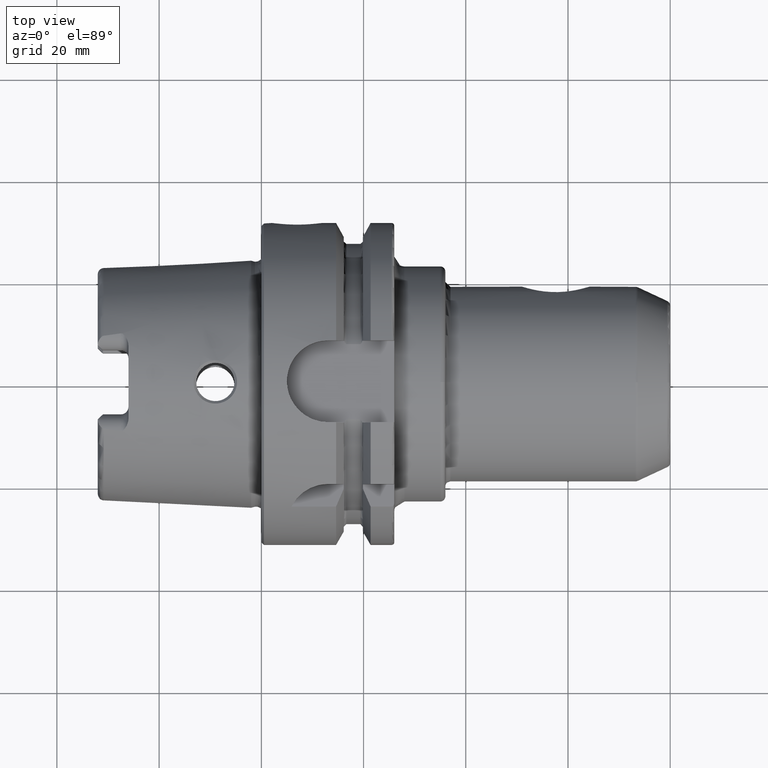
[diagram: clean part render]
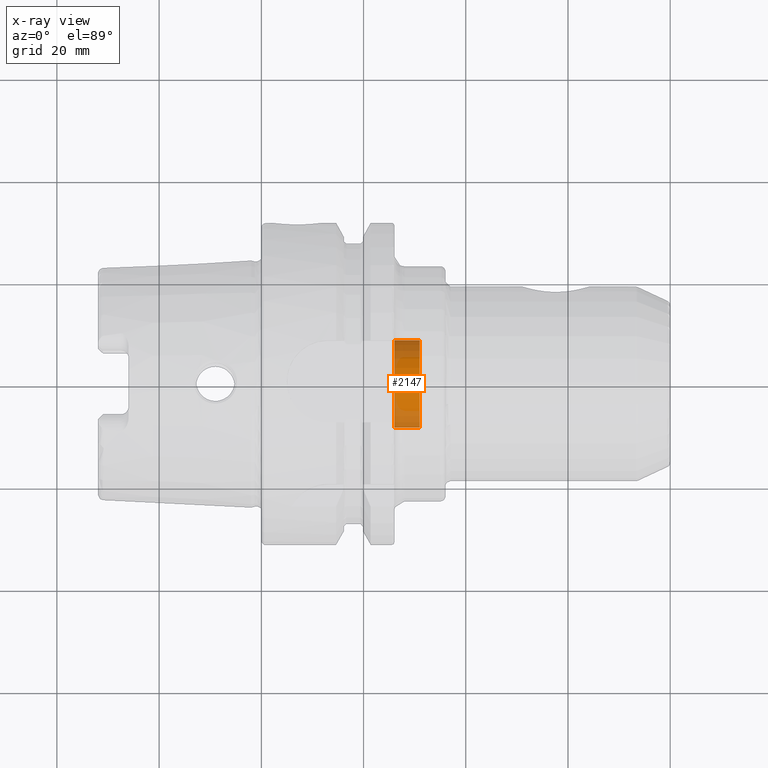
[diagram: x-ray — body ghosted, one internal face saturated and labeled with its STEP entity id]
A machine part, top view, then the same camera in x-ray: the body is ghosted and one INTERNAL B-rep face — a face not visible from any outside direction — is saturated and labeled: STEP entity #2147.
In plain terms, the highlighted cylindrical surface (bore or boss wall) has radius 8.5375 mm, axis along (1, 0, 0).
Its self-contained STEP definition (entity closure, byte-faithful):
#200=CYLINDRICAL_SURFACE('',#2336,8.53749999999999);
#255=FACE_OUTER_BOUND('',#394,.T.);
#394=EDGE_LOOP('',(#1542,#1543,#1544,#1545));
#527=LINE('',#3557,#639);
#639=VECTOR('',#2693,8.53749999999999);
#766=CIRCLE('',#2335,8.53749999999999);
#767=CIRCLE('',#2337,8.53749999999999);
#916=VERTEX_POINT('',#3553);
#917=VERTEX_POINT('',#3556);
#1153=EDGE_CURVE('',#916,#916,#766,.T.);
#1154=EDGE_CURVE('',#916,#917,#527,.T.);
#1155=EDGE_CURVE('',#917,#917,#767,.T.);
#1542=ORIENTED_EDGE('',*,*,#1153,.T.);
#1543=ORIENTED_EDGE('',*,*,#1154,.T.);
#1544=ORIENTED_EDGE('',*,*,#1155,.F.);
#1545=ORIENTED_EDGE('',*,*,#1154,.F.);
#2147=ADVANCED_FACE('',(#255),#200,.F.);
#2335=AXIS2_PLACEMENT_3D('',#3554,#2689,#2690);
#2336=AXIS2_PLACEMENT_3D('',#3555,#2691,#2692);
#2337=AXIS2_PLACEMENT_3D('',#3558,#2694,#2695);
#2689=DIRECTION('center_axis',(1.,0.,0.));
#2690=DIRECTION('ref_axis',(0.,0.,-1.));
#2691=DIRECTION('center_axis',(1.,0.,0.));
#2692=DIRECTION('ref_axis',(0.,1.,0.));
#2693=DIRECTION('',(-1.,0.,0.));
#2694=DIRECTION('center_axis',(1.,0.,0.));
#2695=DIRECTION('ref_axis',(0.,1.,0.));
#3553=CARTESIAN_POINT('',(31.,-8.53749999999999,-1.04554220477205E-15));
#3554=CARTESIAN_POINT('Origin',(31.,0.,0.));
#3555=CARTESIAN_POINT('Origin',(28.5,0.,0.));
#3556=CARTESIAN_POINT('',(26.,-8.53749999999999,-1.04554220477205E-15));
#3557=CARTESIAN_POINT('',(28.5,-8.53749999999999,-1.04554220477205E-15));
#3558=CARTESIAN_POINT('Origin',(26.,0.,0.));